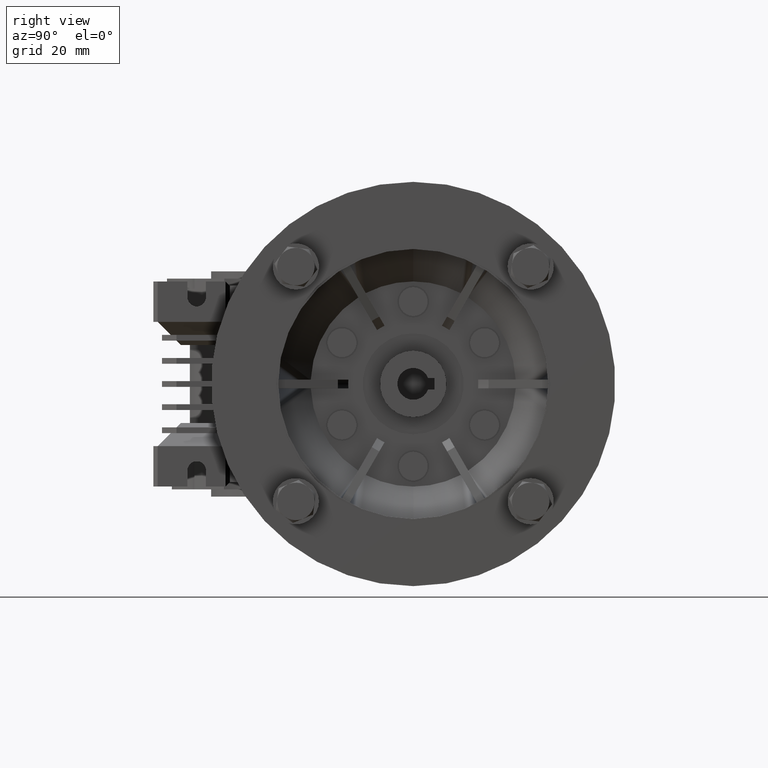
[diagram: clean part render]
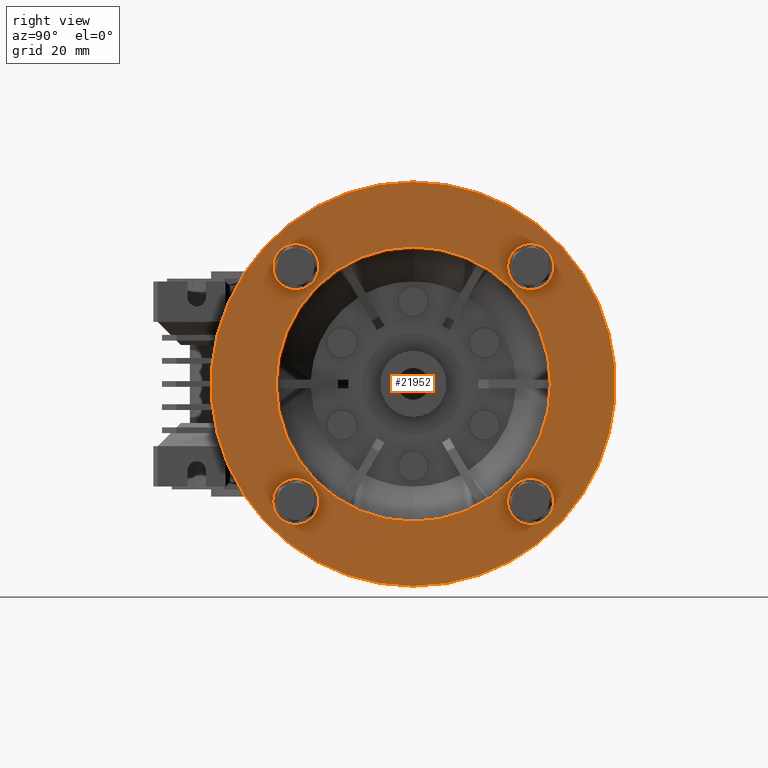
[diagram: same view with one face highlighted and labeled with its STEP entity id]
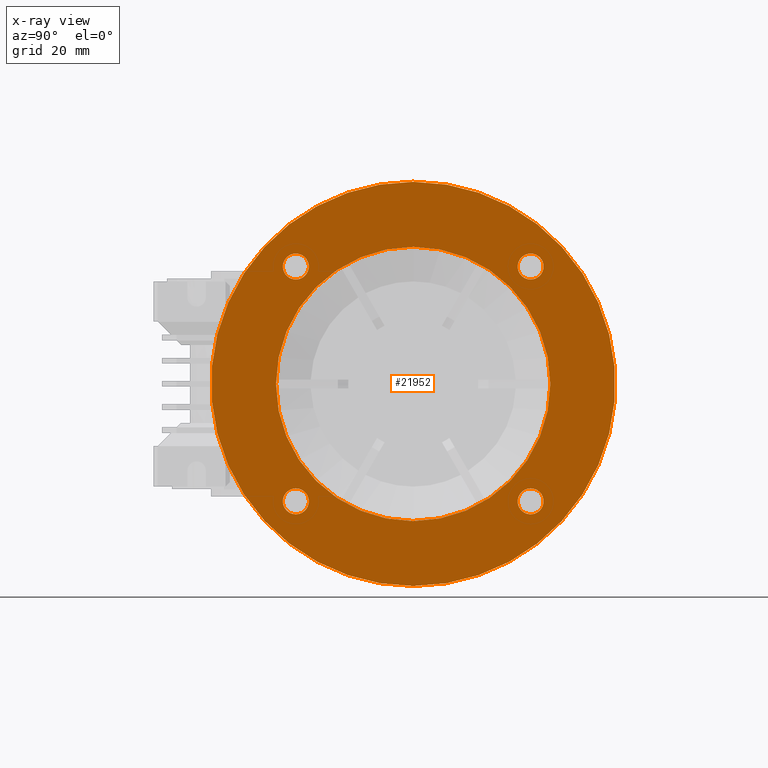
[diagram: x-ray of the same camera — body ghosted, the highlighted face saturated]
A machine part, right view. The second image highlights one B-rep face of the part: STEP entity #21952.
The next image is the same camera in x-ray: the body ghosted, the highlighted face saturated — about 0% of this face is hidden behind the body in this view.
In plain terms, the highlighted planar face has unit normal (-1, 0, 0).
Its self-contained STEP definition (entity closure, byte-faithful):
#860 = FACE_BOUND ( 'NONE', #30087, .T. ) ;
#877 = CIRCLE ( 'NONE', #19094, 47.50000000000000000 ) ;
#1111 = CARTESIAN_POINT ( 'NONE',  ( 70.00000000000000000, 80.65863991822649837, 40.65863991822649837 ) ) ;
#1337 = EDGE_CURVE ( 'NONE', #7915, #24315, #13667, .T. ) ;
#1636 = DIRECTION ( 'NONE',  ( -1.000000000000000000, 0.000000000000000000, 0.000000000000000000 ) ) ;
#1906 = CARTESIAN_POINT ( 'NONE',  ( 70.00000000000000000, -0.6586399182264973673, 45.15863991822817525 ) ) ;
#1988 = ORIENTED_EDGE ( 'NONE', *, *, #9146, .T. ) ;
#2567 = CARTESIAN_POINT ( 'NONE',  ( 70.00000000000000000, -0.6586399182264968122, 36.15863991822933343 ) ) ;
#2945 = DIRECTION ( 'NONE',  ( 0.000000000000000000, 0.000000000000000000, 1.000000000000000000 ) ) ;
#3027 = CARTESIAN_POINT ( 'NONE',  ( 70.00000000000000000, 40.00000000000000000, 0.000000000000000000 ) ) ;
#3086 = AXIS2_PLACEMENT_3D ( 'NONE', #19338, #27597, #8798 ) ;
#3110 = DIRECTION ( 'NONE',  ( -1.000000000000000000, 0.000000000000000000, 0.000000000000000000 ) ) ;
#3191 = AXIS2_PLACEMENT_3D ( 'NONE', #12001, #1636, #33739 ) ;
#3397 = EDGE_LOOP ( 'NONE', ( #5930, #33339 ) ) ;
#3635 = FACE_BOUND ( 'NONE', #3397, .T. ) ;
#3919 = EDGE_CURVE ( 'NONE', #27844, #29521, #24863, .T. ) ;
#4147 = FACE_BOUND ( 'NONE', #10529, .T. ) ;
#4495 = CARTESIAN_POINT ( 'NONE',  ( 70.00000000000000000, 40.00000000000000000, 47.50000000000000000 ) ) ;
#4990 = DIRECTION ( 'NONE',  ( -1.000000000000000000, 0.000000000000000000, 0.000000000000000000 ) ) ;
#5566 = DIRECTION ( 'NONE',  ( 0.000000000000000000, 0.000000000000000000, 1.000000000000000000 ) ) ;
#5930 = ORIENTED_EDGE ( 'NONE', *, *, #15689, .T. ) ;
#6038 = CARTESIAN_POINT ( 'NONE',  ( 70.00000000000000000, -0.6586399182264973673, 40.65863991822875079 ) ) ;
#6477 = CARTESIAN_POINT ( 'NONE',  ( 70.00000000000000000, 40.00000000000000000, 0.000000000000000000 ) ) ;
#6744 = CARTESIAN_POINT ( 'NONE',  ( 70.00000000000000000, 110.0000000000000142, 0.000000000000000000 ) ) ;
#6803 = EDGE_CURVE ( 'NONE', #33478, #17098, #18894, .T. ) ;
#7077 = DIRECTION ( 'NONE',  ( 0.000000000000000000, 0.000000000000000000, 1.000000000000000000 ) ) ;
#7469 = CARTESIAN_POINT ( 'NONE',  ( 70.00000000000000000, 80.65863991822425305, -36.15863991822404699 ) ) ;
#7915 = VERTEX_POINT ( 'NONE', #32785 ) ;
#7955 = EDGE_LOOP ( 'NONE', ( #23896, #26930 ) ) ;
#8083 = CIRCLE ( 'NONE', #27376, 4.499999999999420908 ) ;
#8420 = AXIS2_PLACEMENT_3D ( 'NONE', #14473, #27572, #11884 ) ;
#8450 = ORIENTED_EDGE ( 'NONE', *, *, #3919, .T. ) ;
#8706 = DIRECTION ( 'NONE',  ( 0.000000000000000000, 0.000000000000000000, 1.000000000000000000 ) ) ;
#8798 = DIRECTION ( 'NONE',  ( 0.000000000000000000, 0.000000000000000000, 1.000000000000000000 ) ) ;
#9132 = EDGE_CURVE ( 'NONE', #22306, #22060, #8083, .T. ) ;
#9143 = DIRECTION ( 'NONE',  ( -1.000000000000000000, 0.000000000000000000, 0.000000000000000000 ) ) ;
#9146 = EDGE_CURVE ( 'NONE', #22060, #22306, #29019, .T. ) ;
#9984 = AXIS2_PLACEMENT_3D ( 'NONE', #1111, #22014, #8706 ) ;
#10529 = EDGE_LOOP ( 'NONE', ( #1988, #19885 ) ) ;
#11856 = ORIENTED_EDGE ( 'NONE', *, *, #18567, .T. ) ;
#11884 = DIRECTION ( 'NONE',  ( 0.000000000000000000, 0.000000000000000000, 1.000000000000000000 ) ) ;
#12001 = CARTESIAN_POINT ( 'NONE',  ( 70.00000000000000000, -0.6586399182287525633, -40.65863991822425305 ) ) ;
#13508 = ORIENTED_EDGE ( 'NONE', *, *, #15442, .F. ) ;
#13520 = CARTESIAN_POINT ( 'NONE',  ( 70.00000000000000000, 80.65863991822649837, 45.15863991822649837 ) ) ;
#13667 = CIRCLE ( 'NONE', #3191, 4.500000000001675993 ) ;
#13719 = EDGE_CURVE ( 'NONE', #29521, #27844, #22585, .T. ) ;
#13921 = EDGE_CURVE ( 'NONE', #21965, #18475, #17064, .T. ) ;
#14137 = CIRCLE ( 'NONE', #25155, 4.500000000002453149 ) ;
#14455 = EDGE_LOOP ( 'NONE', ( #8450, #31072 ) ) ;
#14473 = CARTESIAN_POINT ( 'NONE',  ( 70.00000000000000000, 40.00000000000000000, 0.000000000000000000 ) ) ;
#14689 = DIRECTION ( 'NONE',  ( -1.000000000000000000, 0.000000000000000000, 0.000000000000000000 ) ) ;
#15352 = CARTESIAN_POINT ( 'NONE',  ( 70.00000000000000000, 80.65863991822425305, -40.65863991822649837 ) ) ;
#15409 = CARTESIAN_POINT ( 'NONE',  ( 70.00000000000000000, 40.00000000000000000, 70.00000000000000000 ) ) ;
#15442 = EDGE_CURVE ( 'NONE', #17098, #33478, #877, .T. ) ;
#15689 = EDGE_CURVE ( 'NONE', #21738, #33471, #14137, .T. ) ;
#16180 = CIRCLE ( 'NONE', #22827, 4.500000000001675993 ) ;
#16934 = FACE_OUTER_BOUND ( 'NONE', #7955, .T. ) ;
#17064 = CIRCLE ( 'NONE', #25878, 70.00000000000000000 ) ;
#17098 = VERTEX_POINT ( 'NONE', #4495 ) ;
#17132 = ORIENTED_EDGE ( 'NONE', *, *, #6803, .F. ) ;
#17356 = CIRCLE ( 'NONE', #25054, 70.00000000000000000 ) ;
#17699 = DIRECTION ( 'NONE',  ( 1.000000000000000000, 0.000000000000000000, 0.000000000000000000 ) ) ;
#17968 = EDGE_CURVE ( 'NONE', #33471, #21738, #33811, .T. ) ;
#18475 = VERTEX_POINT ( 'NONE', #15409 ) ;
#18567 = EDGE_CURVE ( 'NONE', #24315, #7915, #16180, .T. ) ;
#18894 = CIRCLE ( 'NONE', #8420, 47.50000000000000000 ) ;
#19094 = AXIS2_PLACEMENT_3D ( 'NONE', #6477, #17699, #20110 ) ;
#19179 = EDGE_CURVE ( 'NONE', #18475, #21965, #17356, .T. ) ;
#19338 = CARTESIAN_POINT ( 'NONE',  ( 70.00000000000000000, -0.6586399182264973673, 40.65863991822875079 ) ) ;
#19617 = CARTESIAN_POINT ( 'NONE',  ( 70.00000000000000000, 80.65863991822425305, -40.65863991822649837 ) ) ;
#19885 = ORIENTED_EDGE ( 'NONE', *, *, #9132, .T. ) ;
#20092 = EDGE_LOOP ( 'NONE', ( #11856, #29135 ) ) ;
#20110 = DIRECTION ( 'NONE',  ( 0.000000000000000000, 0.000000000000000000, 1.000000000000000000 ) ) ;
#20925 = AXIS2_PLACEMENT_3D ( 'NONE', #23264, #33793, #22933 ) ;
#21041 = CARTESIAN_POINT ( 'NONE',  ( 70.00000000000000000, -0.6586399182287525633, -36.15863991822257617 ) ) ;
#21338 = DIRECTION ( 'NONE',  ( -1.000000000000000000, 0.000000000000000000, 0.000000000000000000 ) ) ;
#21738 = VERTEX_POINT ( 'NONE', #7469 ) ;
#21952 = ADVANCED_FACE ( 'NONE', ( #860, #3635, #29860, #27789, #4147, #16934 ), #32469, .F. ) ;
#21965 = VERTEX_POINT ( 'NONE', #30197 ) ;
#22014 = DIRECTION ( 'NONE',  ( -1.000000000000000000, 0.000000000000000000, 0.000000000000000000 ) ) ;
#22060 = VERTEX_POINT ( 'NONE', #1906 ) ;
#22229 = AXIS2_PLACEMENT_3D ( 'NONE', #19617, #33081, #30119 ) ;
#22306 = VERTEX_POINT ( 'NONE', #2567 ) ;
#22585 = CIRCLE ( 'NONE', #20925, 4.499999999999997335 ) ;
#22827 = AXIS2_PLACEMENT_3D ( 'NONE', #23520, #3110, #2945 ) ;
#22933 = DIRECTION ( 'NONE',  ( 0.000000000000000000, 0.000000000000000000, 1.000000000000000000 ) ) ;
#23264 = CARTESIAN_POINT ( 'NONE',  ( 70.00000000000000000, 80.65863991822649837, 40.65863991822649837 ) ) ;
#23520 = CARTESIAN_POINT ( 'NONE',  ( 70.00000000000000000, -0.6586399182287525633, -40.65863991822425305 ) ) ;
#23896 = ORIENTED_EDGE ( 'NONE', *, *, #19179, .F. ) ;
#24315 = VERTEX_POINT ( 'NONE', #21041 ) ;
#24526 = CARTESIAN_POINT ( 'NONE',  ( 70.00000000000000000, 80.65863991822649837, 36.15863991822649837 ) ) ;
#24863 = CIRCLE ( 'NONE', #9984, 4.499999999999997335 ) ;
#25054 = AXIS2_PLACEMENT_3D ( 'NONE', #31984, #26960, #5566 ) ;
#25155 = AXIS2_PLACEMENT_3D ( 'NONE', #15352, #4990, #7077 ) ;
#25181 = CARTESIAN_POINT ( 'NONE',  ( 70.00000000000000000, 40.00000000000000711, -47.50000000000000000 ) ) ;
#25878 = AXIS2_PLACEMENT_3D ( 'NONE', #3027, #21338, #29264 ) ;
#26930 = ORIENTED_EDGE ( 'NONE', *, *, #13921, .F. ) ;
#26960 = DIRECTION ( 'NONE',  ( -1.000000000000000000, 0.000000000000000000, 0.000000000000000000 ) ) ;
#27103 = DIRECTION ( 'NONE',  ( 0.000000000000000000, 0.000000000000000000, 1.000000000000000000 ) ) ;
#27376 = AXIS2_PLACEMENT_3D ( 'NONE', #6038, #9143, #32453 ) ;
#27572 = DIRECTION ( 'NONE',  ( 1.000000000000000000, 0.000000000000000000, 0.000000000000000000 ) ) ;
#27597 = DIRECTION ( 'NONE',  ( -1.000000000000000000, 0.000000000000000000, 0.000000000000000000 ) ) ;
#27789 = FACE_BOUND ( 'NONE', #20092, .T. ) ;
#27844 = VERTEX_POINT ( 'NONE', #13520 ) ;
#28114 = CARTESIAN_POINT ( 'NONE',  ( 70.00000000000000000, 80.65863991822425305, -45.15863991822894974 ) ) ;
#28897 = AXIS2_PLACEMENT_3D ( 'NONE', #6744, #14689, #27103 ) ;
#29019 = CIRCLE ( 'NONE', #3086, 4.499999999999420908 ) ;
#29135 = ORIENTED_EDGE ( 'NONE', *, *, #1337, .T. ) ;
#29264 = DIRECTION ( 'NONE',  ( 0.000000000000000000, 0.000000000000000000, 1.000000000000000000 ) ) ;
#29521 = VERTEX_POINT ( 'NONE', #24526 ) ;
#29860 = FACE_BOUND ( 'NONE', #14455, .T. ) ;
#30087 = EDGE_LOOP ( 'NONE', ( #13508, #17132 ) ) ;
#30119 = DIRECTION ( 'NONE',  ( 0.000000000000000000, 0.000000000000000000, 1.000000000000000000 ) ) ;
#30197 = CARTESIAN_POINT ( 'NONE',  ( 70.00000000000000000, 40.00000000000000711, -70.00000000000000000 ) ) ;
#31072 = ORIENTED_EDGE ( 'NONE', *, *, #13719, .T. ) ;
#31984 = CARTESIAN_POINT ( 'NONE',  ( 70.00000000000000000, 40.00000000000000000, 0.000000000000000000 ) ) ;
#32453 = DIRECTION ( 'NONE',  ( 0.000000000000000000, 0.000000000000000000, 1.000000000000000000 ) ) ;
#32469 = PLANE ( 'NONE',  #28897 ) ;
#32785 = CARTESIAN_POINT ( 'NONE',  ( 70.00000000000000000, -0.6586399182287520082, -45.15863991822592283 ) ) ;
#33081 = DIRECTION ( 'NONE',  ( -1.000000000000000000, 0.000000000000000000, 0.000000000000000000 ) ) ;
#33339 = ORIENTED_EDGE ( 'NONE', *, *, #17968, .T. ) ;
#33471 = VERTEX_POINT ( 'NONE', #28114 ) ;
#33478 = VERTEX_POINT ( 'NONE', #25181 ) ;
#33739 = DIRECTION ( 'NONE',  ( 0.000000000000000000, 0.000000000000000000, 1.000000000000000000 ) ) ;
#33793 = DIRECTION ( 'NONE',  ( -1.000000000000000000, 0.000000000000000000, 0.000000000000000000 ) ) ;
#33811 = CIRCLE ( 'NONE', #22229, 4.500000000002453149 ) ;